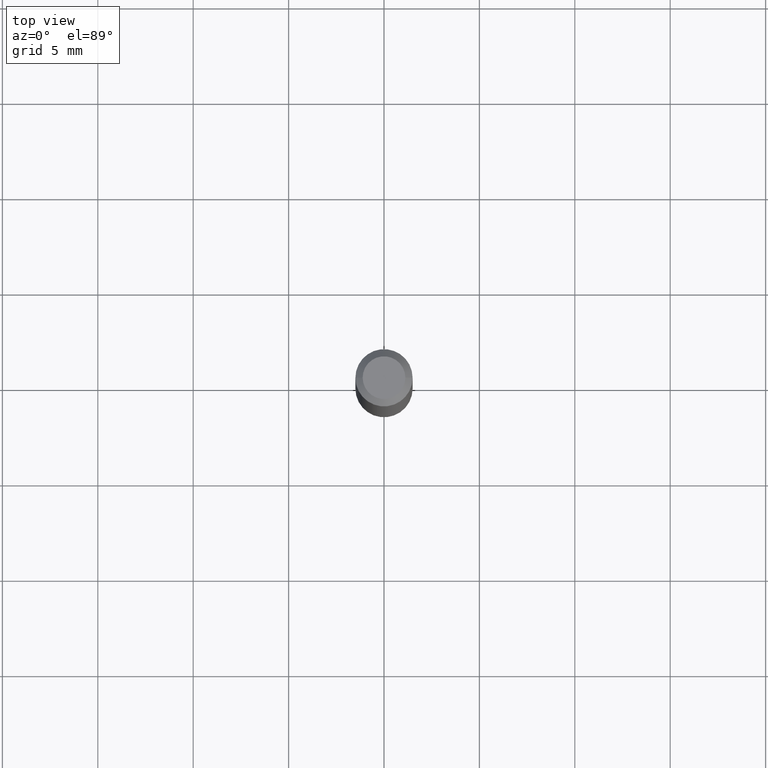
[diagram: clean part render]
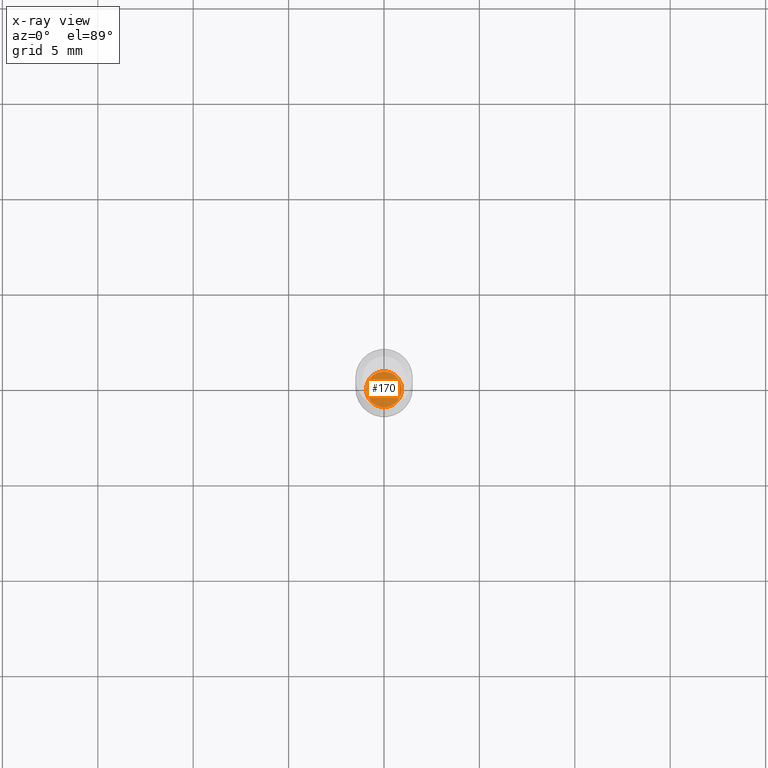
[diagram: x-ray — body ghosted, one internal face saturated and labeled with its STEP entity id]
A machine part, top view, then the same camera in x-ray: the body is ghosted and one INTERNAL B-rep face — a face not visible from any outside direction — is saturated and labeled: STEP entity #170.
In plain terms, the highlighted planar face has unit normal (-0, 0, 1).
Its self-contained STEP definition (entity closure, byte-faithful):
#5 = PLANE ( 'NONE',  #396 ) ;
#8 = CARTESIAN_POINT ( 'NONE',  ( 3.393821609223732485E-29, -4.845477802046516210E-15, -1.387799999999999923 ) ) ;
#38 = DIRECTION ( 'NONE',  ( -2.445468806185136597E-29, 3.491481338843145583E-15, 1.000000000000000000 ) ) ;
#39 = DIRECTION ( 'NONE',  ( -2.438088387897960049E-29, 3.491481338843145188E-15, 1.000000000000000000 ) ) ;
#47 = CIRCLE ( 'NONE', #215, 0.03690000000000000224 ) ;
#50 = EDGE_CURVE ( 'NONE', #442, #266, #47, .T. ) ;
#73 = EDGE_LOOP ( 'NONE', ( #151, #222 ) ) ;
#106 = FACE_OUTER_BOUND ( 'NONE', #73, .T. ) ;
#108 = AXIS2_PLACEMENT_3D ( 'NONE', #8, #404, #458 ) ;
#123 = CARTESIAN_POINT ( 'NONE',  ( -0.03690000000000000224, -4.580638305376930884E-15, -1.387799999999999923 ) ) ;
#151 = ORIENTED_EDGE ( 'NONE', *, *, #383, .F. ) ;
#170 = ADVANCED_FACE ( 'NONE', ( #106 ), #5, .F. ) ;
#178 = DIRECTION ( 'NONE',  ( 1.000000000000000000, -6.982962677686265922E-15, 4.876176775795935793E-29 ) ) ;
#215 = AXIS2_PLACEMENT_3D ( 'NONE', #341, #38, #240 ) ;
#222 = ORIENTED_EDGE ( 'NONE', *, *, #50, .F. ) ;
#227 = CARTESIAN_POINT ( 'NONE',  ( 0.03690000000000000224, -5.103149124853139603E-15, -1.387799999999999923 ) ) ;
#240 = DIRECTION ( 'NONE',  ( 1.000000000000000000, -6.982962677686261189E-15, 0.000000000000000000 ) ) ;
#266 = VERTEX_POINT ( 'NONE', #227 ) ;
#319 = CIRCLE ( 'NONE', #108, 0.03690000000000000224 ) ;
#341 = CARTESIAN_POINT ( 'NONE',  ( 3.393821609223732485E-29, -4.845477802046516210E-15, -1.387799999999999923 ) ) ;
#359 = CARTESIAN_POINT ( 'NONE',  ( 3.393821609223732485E-29, -4.845477802046516210E-15, -1.387799999999999923 ) ) ;
#383 = EDGE_CURVE ( 'NONE', #266, #442, #319, .T. ) ;
#396 = AXIS2_PLACEMENT_3D ( 'NONE', #359, #39, #178 ) ;
#404 = DIRECTION ( 'NONE',  ( -2.445468806185136597E-29, 3.491481338843145583E-15, 1.000000000000000000 ) ) ;
#442 = VERTEX_POINT ( 'NONE', #123 ) ;
#458 = DIRECTION ( 'NONE',  ( 1.000000000000000000, -6.982962677686261189E-15, 0.000000000000000000 ) ) ;